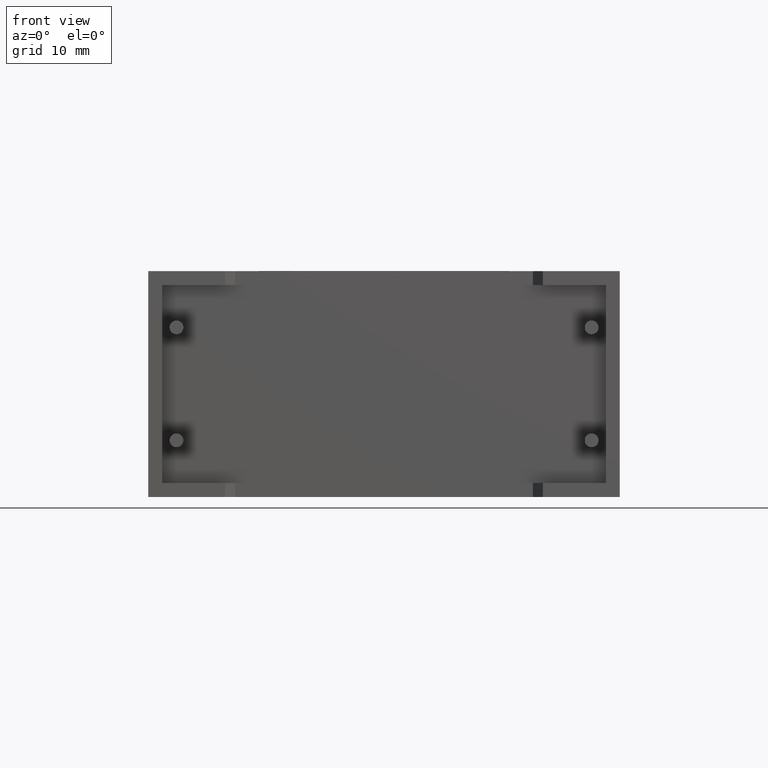
[diagram: clean part render]
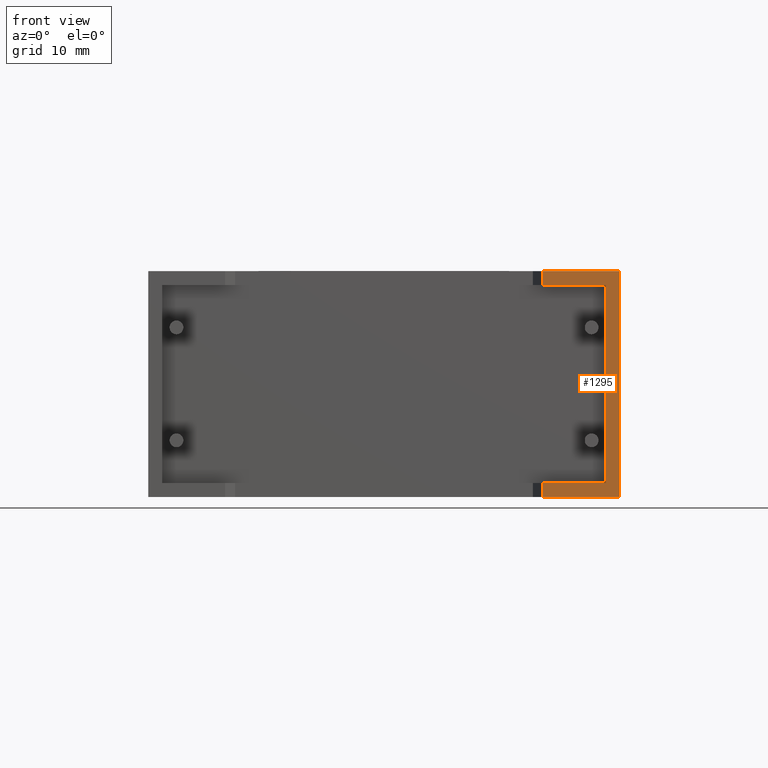
[diagram: same view with one face highlighted and labeled with its STEP entity id]
A machine part, front view. The second image highlights one B-rep face of the part: STEP entity #1295.
In plain terms, the highlighted planar face has unit normal (0, 1, 0).
Its self-contained STEP definition (entity closure, byte-faithful):
#30 = VECTOR ( 'NONE', #146, 1000.000000000000000 ) ;
#53 = LINE ( 'NONE', #159, #2364 ) ;
#140 = LINE ( 'NONE', #267, #818 ) ;
#146 = DIRECTION ( 'NONE',  ( -0.0000000000000000000, -0.0000000000000000000, -1.000000000000000000 ) ) ;
#159 = CARTESIAN_POINT ( 'NONE',  ( 35.64999999999999900, 1.702259050814820900E-015, 0.0000000000000000000 ) ) ;
#214 = CARTESIAN_POINT ( 'NONE',  ( 42.60000000000000100, 0.0000000000000000000, 20.39999999999999900 ) ) ;
#238 = ORIENTED_EDGE ( 'NONE', *, *, #962, .F. ) ;
#267 = CARTESIAN_POINT ( 'NONE',  ( 0.0000000000000000000, 0.0000000000000000000, 20.39999999999999900 ) ) ;
#356 = ORIENTED_EDGE ( 'NONE', *, *, #718, .F. ) ;
#398 = FACE_OUTER_BOUND ( 'NONE', #2996, .T. ) ;
#406 = VERTEX_POINT ( 'NONE', #665 ) ;
#446 = VERTEX_POINT ( 'NONE', #2648 ) ;
#476 = DIRECTION ( 'NONE',  ( -0.0000000000000000000, -0.0000000000000000000, 1.000000000000000000 ) ) ;
#551 = CARTESIAN_POINT ( 'NONE',  ( 0.0000000000000000000, 0.0000000000000000000, 0.0000000000000000000 ) ) ;
#553 = CARTESIAN_POINT ( 'NONE',  ( 42.60000000000000100, 0.0000000000000000000, 20.39999999999999900 ) ) ;
#588 = DIRECTION ( 'NONE',  ( 1.000000000000000000, 0.0000000000000000000, 0.0000000000000000000 ) ) ;
#593 = DIRECTION ( 'NONE',  ( -1.000000000000000000, 0.0000000000000000000, 0.0000000000000000000 ) ) ;
#665 = CARTESIAN_POINT ( 'NONE',  ( 35.64999999999999900, 1.702259050814820900E-015, 1.253987999999999900 ) ) ;
#718 = EDGE_CURVE ( 'NONE', #1382, #2586, #2910, .T. ) ;
#818 = VECTOR ( 'NONE', #2418, 1000.000000000000000 ) ;
#884 = ORIENTED_EDGE ( 'NONE', *, *, #1158, .F. ) ;
#959 = ORIENTED_EDGE ( 'NONE', *, *, #1559, .T. ) ;
#962 = EDGE_CURVE ( 'NONE', #406, #1911, #1889, .T. ) ;
#972 = VECTOR ( 'NONE', #588, 1000.000000000000000 ) ;
#1027 = LINE ( 'NONE', #2651, #2927 ) ;
#1144 = VERTEX_POINT ( 'NONE', #1436 ) ;
#1158 = EDGE_CURVE ( 'NONE', #1144, #1393, #1365, .T. ) ;
#1252 = CARTESIAN_POINT ( 'NONE',  ( 35.64999999999999900, 1.702259050814820900E-015, 19.14601199999999500 ) ) ;
#1295 = ADVANCED_FACE ( 'NONE', ( #398 ), #2396, .F. ) ;
#1321 = EDGE_CURVE ( 'NONE', #1393, #446, #1027, .T. ) ;
#1352 = DIRECTION ( 'NONE',  ( -0.0000000000000000000, -0.0000000000000000000, 1.000000000000000000 ) ) ;
#1365 = LINE ( 'NONE', #1410, #1602 ) ;
#1382 = VERTEX_POINT ( 'NONE', #214 ) ;
#1393 = VERTEX_POINT ( 'NONE', #1252 ) ;
#1410 = CARTESIAN_POINT ( 'NONE',  ( 41.34601200000000200, 0.0000000000000000000, 19.14601199999999500 ) ) ;
#1423 = CARTESIAN_POINT ( 'NONE',  ( 41.34601200000000200, 0.0000000000000000000, 1.253987999999999900 ) ) ;
#1436 = CARTESIAN_POINT ( 'NONE',  ( 41.34601200000000200, 0.0000000000000000000, 19.14601199999999500 ) ) ;
#1449 = VECTOR ( 'NONE', #1627, 1000.000000000000000 ) ;
#1559 = EDGE_CURVE ( 'NONE', #1750, #2586, #3022, .T. ) ;
#1582 = DIRECTION ( 'NONE',  ( 0.0000000000000000000, 0.0000000000000000000, 1.000000000000000000 ) ) ;
#1602 = VECTOR ( 'NONE', #593, 1000.000000000000000 ) ;
#1611 = ORIENTED_EDGE ( 'NONE', *, *, #2383, .F. ) ;
#1627 = DIRECTION ( 'NONE',  ( 1.000000000000000000, 0.0000000000000000000, 0.0000000000000000000 ) ) ;
#1750 = VERTEX_POINT ( 'NONE', #2559 ) ;
#1889 = LINE ( 'NONE', #3033, #1449 ) ;
#1903 = AXIS2_PLACEMENT_3D ( 'NONE', #2877, #2196, #1914 ) ;
#1911 = VERTEX_POINT ( 'NONE', #1423 ) ;
#1914 = DIRECTION ( 'NONE',  ( 0.0000000000000000000, -0.0000000000000000000, 1.000000000000000000 ) ) ;
#1915 = ORIENTED_EDGE ( 'NONE', *, *, #1321, .F. ) ;
#1979 = EDGE_CURVE ( 'NONE', #446, #1382, #140, .T. ) ;
#2196 = DIRECTION ( 'NONE',  ( 0.0000000000000000000, 1.000000000000000000, 0.0000000000000000000 ) ) ;
#2364 = VECTOR ( 'NONE', #1352, 1000.000000000000000 ) ;
#2383 = EDGE_CURVE ( 'NONE', #1750, #406, #53, .T. ) ;
#2396 = PLANE ( 'NONE',  #1903 ) ;
#2418 = DIRECTION ( 'NONE',  ( 1.000000000000000000, 0.0000000000000000000, 0.0000000000000000000 ) ) ;
#2421 = ORIENTED_EDGE ( 'NONE', *, *, #1979, .F. ) ;
#2432 = LINE ( 'NONE', #3037, #2735 ) ;
#2439 = CARTESIAN_POINT ( 'NONE',  ( 42.60000000000000100, 0.0000000000000000000, 0.0000000000000000000 ) ) ;
#2559 = CARTESIAN_POINT ( 'NONE',  ( 35.64999999999999900, 1.702259050814820900E-015, 0.0000000000000000000 ) ) ;
#2586 = VERTEX_POINT ( 'NONE', #2439 ) ;
#2648 = CARTESIAN_POINT ( 'NONE',  ( 35.64999999999999900, 1.702259050814820900E-015, 20.39999999999999900 ) ) ;
#2651 = CARTESIAN_POINT ( 'NONE',  ( 35.64999999999999900, 1.702259050814820900E-015, 0.0000000000000000000 ) ) ;
#2735 = VECTOR ( 'NONE', #1582, 1000.000000000000000 ) ;
#2779 = ORIENTED_EDGE ( 'NONE', *, *, #2912, .F. ) ;
#2877 = CARTESIAN_POINT ( 'NONE',  ( 0.0000000000000000000, 0.0000000000000000000, 20.39999999999999900 ) ) ;
#2910 = LINE ( 'NONE', #553, #30 ) ;
#2912 = EDGE_CURVE ( 'NONE', #1911, #1144, #2432, .T. ) ;
#2927 = VECTOR ( 'NONE', #476, 1000.000000000000000 ) ;
#2996 = EDGE_LOOP ( 'NONE', ( #1611, #959, #356, #2421, #1915, #884, #2779, #238 ) ) ;
#3022 = LINE ( 'NONE', #551, #972 ) ;
#3033 = CARTESIAN_POINT ( 'NONE',  ( 1.253987999999999900, 0.0000000000000000000, 1.253987999999999900 ) ) ;
#3037 = CARTESIAN_POINT ( 'NONE',  ( 41.34601200000000200, 0.0000000000000000000, 1.253987999999999900 ) ) ;